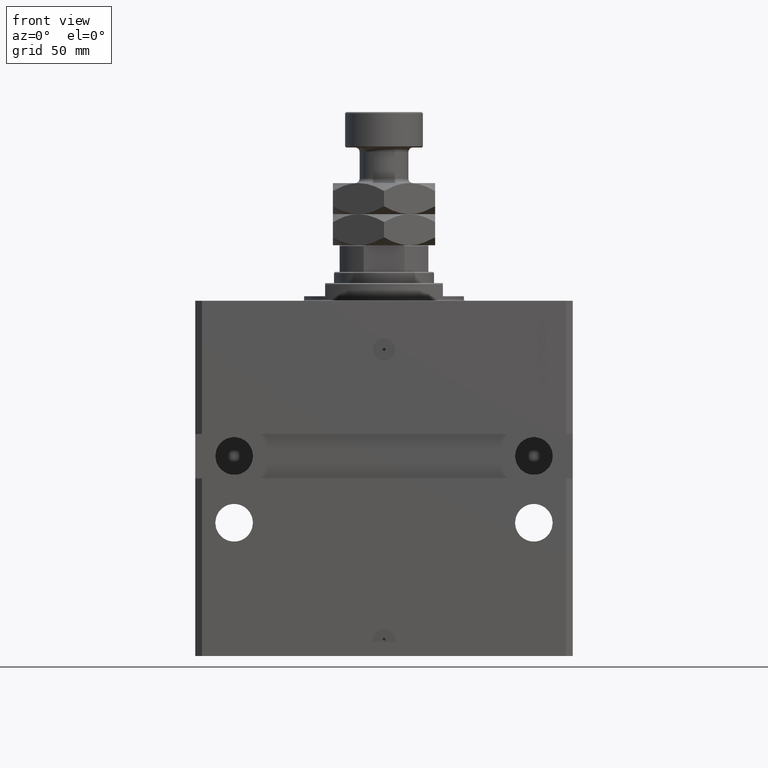
[diagram: clean part render]
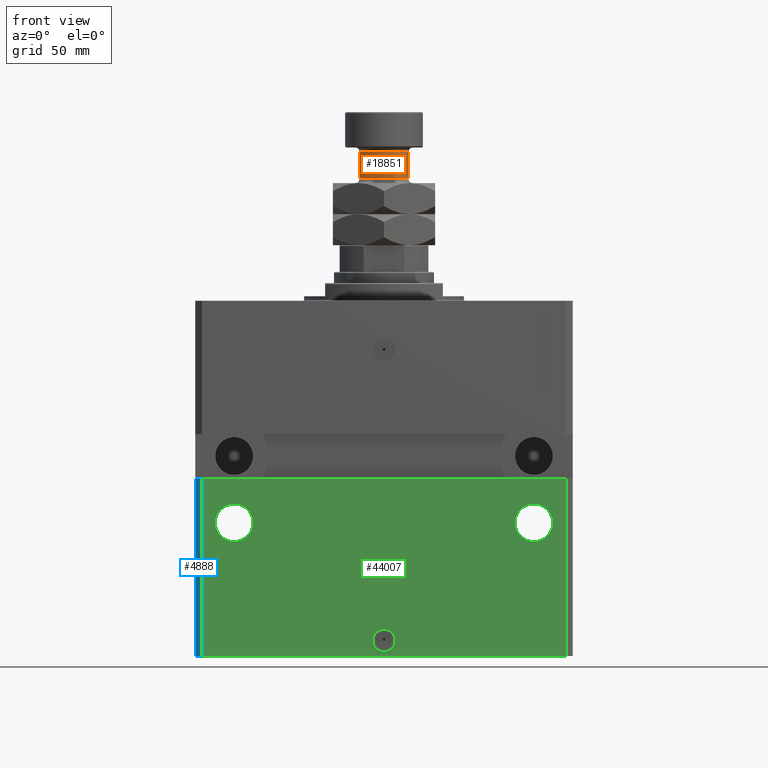
[diagram: same view with three faces highlighted in distinct colors, each labeled with its STEP entity id]
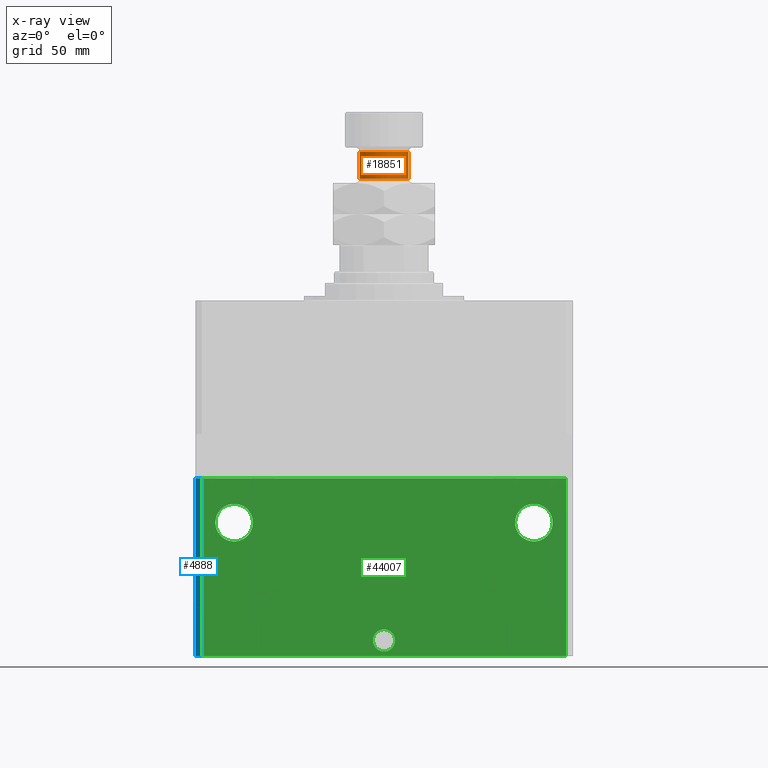
[diagram: x-ray of the same camera — body ghosted, the three highlighted faces saturated]
A machine part, front view with three faces highlighted in distinct colors.
The next image is the same camera in x-ray (body ghosted, the three faces saturated) — at least one of them is partly hidden behind the body in this view.
Their STEP definitions:

[orange] entity #18851 — the highlighted cylindrical surface (edge-blend (fillet) strip) has radius 11 mm, axis along (-0, -0, -1).
#1655 = EDGE_CURVE ( 'NONE', #43773, #32346, #5008, .T. ) ;
#2294 = DIRECTION ( 'NONE',  ( 1.000000000000000000, 0.000000000000000000, 0.000000000000000000 ) ) ;
#2419 = LINE ( 'NONE', #39066, #33247 ) ;
#3084 = EDGE_LOOP ( 'NONE', ( #13253, #47861, #15653, #31984 ) ) ;
#3100 = EDGE_CURVE ( 'NONE', #10146, #43773, #9563, .T. ) ;
#4962 = CARTESIAN_POINT ( 'NONE',  ( 11.00000000000000000, 1.347111479062088405E-15, 30.00000000000000000 ) ) ;
#5008 = CIRCLE ( 'NONE', #28271, 11.00000000000000000 ) ;
#5757 = AXIS2_PLACEMENT_3D ( 'NONE', #43534, #14136, #2294 ) ;
#6403 = DIRECTION ( 'NONE',  ( -0.000000000000000000, -0.000000000000000000, -1.000000000000000000 ) ) ;
#7570 = DIRECTION ( 'NONE',  ( 0.000000000000000000, 0.000000000000000000, 1.000000000000000000 ) ) ;
#8833 = CIRCLE ( 'NONE', #5757, 11.00000000000000000 ) ;
#9459 = CARTESIAN_POINT ( 'NONE',  ( -11.00000000000000000, 0.000000000000000000, 41.99999999999999289 ) ) ;
#9563 = LINE ( 'NONE', #47155, #9713 ) ;
#9713 = VECTOR ( 'NONE', #6403, 1000.000000000000000 ) ;
#10146 = VERTEX_POINT ( 'NONE', #9459 ) ;
#10902 = CARTESIAN_POINT ( 'NONE',  ( 11.00000000000000000, 1.347111479062088405E-15, 41.99999999999999289 ) ) ;
#13253 = ORIENTED_EDGE ( 'NONE', *, *, #47928, .F. ) ;
#13924 = DIRECTION ( 'NONE',  ( 1.000000000000000000, 0.000000000000000000, 0.000000000000000000 ) ) ;
#14136 = DIRECTION ( 'NONE',  ( -0.000000000000000000, -0.000000000000000000, -1.000000000000000000 ) ) ;
#15653 = ORIENTED_EDGE ( 'NONE', *, *, #3100, .T. ) ;
#17852 = DIRECTION ( 'NONE',  ( -0.000000000000000000, -0.000000000000000000, -1.000000000000000000 ) ) ;
#18851 = ADVANCED_FACE ( 'NONE', ( #24672 ), #24901, .T. ) ;
#20470 = CARTESIAN_POINT ( 'NONE',  ( -11.00000000000000000, 0.000000000000000000, 30.00000000000000000 ) ) ;
#21717 = DIRECTION ( 'NONE',  ( -1.000000000000000000, 0.000000000000000000, 0.000000000000000000 ) ) ;
#22374 = CARTESIAN_POINT ( 'NONE',  ( 0.000000000000000000, 0.000000000000000000, 30.00000000000000000 ) ) ;
#24101 = EDGE_CURVE ( 'NONE', #40753, #10146, #8833, .T. ) ;
#24672 = FACE_OUTER_BOUND ( 'NONE', #3084, .T. ) ;
#24901 = CYLINDRICAL_SURFACE ( 'NONE', #35707, 11.00000000000000000 ) ;
#25368 = CARTESIAN_POINT ( 'NONE',  ( 0.000000000000000000, 0.000000000000000000, 44.00000000000000000 ) ) ;
#28271 = AXIS2_PLACEMENT_3D ( 'NONE', #22374, #7570, #13924 ) ;
#31984 = ORIENTED_EDGE ( 'NONE', *, *, #1655, .T. ) ;
#32346 = VERTEX_POINT ( 'NONE', #4962 ) ;
#33247 = VECTOR ( 'NONE', #46335, 1000.000000000000000 ) ;
#35707 = AXIS2_PLACEMENT_3D ( 'NONE', #25368, #17852, #21717 ) ;
#39066 = CARTESIAN_POINT ( 'NONE',  ( 11.00000000000000000, 1.347111479062088405E-15, 44.00000000000000000 ) ) ;
#40753 = VERTEX_POINT ( 'NONE', #10902 ) ;
#43534 = CARTESIAN_POINT ( 'NONE',  ( 0.000000000000000000, 0.000000000000000000, 41.99999999999999289 ) ) ;
#43773 = VERTEX_POINT ( 'NONE', #20470 ) ;
#46335 = DIRECTION ( 'NONE',  ( -0.000000000000000000, -0.000000000000000000, -1.000000000000000000 ) ) ;
#47155 = CARTESIAN_POINT ( 'NONE',  ( -11.00000000000000000, 0.000000000000000000, 44.00000000000000000 ) ) ;
#47861 = ORIENTED_EDGE ( 'NONE', *, *, #24101, .T. ) ;
#47928 = EDGE_CURVE ( 'NONE', #40753, #32346, #2419, .T. ) ;

[blue] entity #4888 — the highlighted planar face has unit normal (-0.7071, -0.7071, 0).
#195 = LINE ( 'NONE', #36382, #39885 ) ;
#686 = EDGE_CURVE ( 'NONE', #39537, #28528, #4707, .T. ) ;
#1056 = CARTESIAN_POINT ( 'NONE',  ( -85.00000000000001421, -67.00000000000000000, -160.0000000000000000 ) ) ;
#2267 = CARTESIAN_POINT ( 'NONE',  ( -85.00000000000001421, -67.00000000000000000, -160.0000000000000000 ) ) ;
#3612 = DIRECTION ( 'NONE',  ( 0.7071067811865474617, -0.7071067811865474617, 0.000000000000000000 ) ) ;
#3842 = CARTESIAN_POINT ( 'NONE',  ( -82.00000000000001421, -70.00000000000000000, -160.0000000000000000 ) ) ;
#4707 = LINE ( 'NONE', #1056, #24359 ) ;
#4888 = ADVANCED_FACE ( 'NONE', ( #47967 ), #39781, .T. ) ;
#6760 = DIRECTION ( 'NONE',  ( -0.7071067811865475727, -0.7071067811865475727, 0.000000000000000000 ) ) ;
#7694 = ORIENTED_EDGE ( 'NONE', *, *, #686, .F. ) ;
#7972 = CARTESIAN_POINT ( 'NONE',  ( -85.00000000000001421, -67.00000000000000000, -160.0000000000000000 ) ) ;
#8395 = VERTEX_POINT ( 'NONE', #24788 ) ;
#12282 = EDGE_LOOP ( 'NONE', ( #12741, #7694, #35507, #29287 ) ) ;
#12741 = ORIENTED_EDGE ( 'NONE', *, *, #29365, .F. ) ;
#13144 = VECTOR ( 'NONE', #43702, 1000.000000000000000 ) ;
#13811 = CARTESIAN_POINT ( 'NONE',  ( -85.00000000000001421, -67.00000000000000000, -160.0000000000000000 ) ) ;
#16204 = VECTOR ( 'NONE', #30300, 1000.000000000000114 ) ;
#17732 = LINE ( 'NONE', #28659, #13144 ) ;
#18308 = VERTEX_POINT ( 'NONE', #3842 ) ;
#24359 = VECTOR ( 'NONE', #45470, 1000.000000000000000 ) ;
#24788 = CARTESIAN_POINT ( 'NONE',  ( -82.00000000000000000, -70.00000000000001421, -80.00000000000001421 ) ) ;
#27379 = LINE ( 'NONE', #7972, #16204 ) ;
#28528 = VERTEX_POINT ( 'NONE', #29802 ) ;
#28659 = CARTESIAN_POINT ( 'NONE',  ( -82.00000000000001421, -70.00000000000000000, -160.0000000000000000 ) ) ;
#29287 = ORIENTED_EDGE ( 'NONE', *, *, #45868, .T. ) ;
#29365 = EDGE_CURVE ( 'NONE', #28528, #8395, #195, .T. ) ;
#29802 = CARTESIAN_POINT ( 'NONE',  ( -85.00000000000001421, -67.00000000000000000, -80.00000000000001421 ) ) ;
#30300 = DIRECTION ( 'NONE',  ( 0.7071067811865474617, -0.7071067811865474617, 0.000000000000000000 ) ) ;
#35507 = ORIENTED_EDGE ( 'NONE', *, *, #45255, .T. ) ;
#36382 = CARTESIAN_POINT ( 'NONE',  ( -85.00000000000001421, -67.00000000000000000, -80.00000000000001421 ) ) ;
#37063 = DIRECTION ( 'NONE',  ( 0.7071067811865474617, -0.7071067811865474617, 0.000000000000000000 ) ) ;
#39537 = VERTEX_POINT ( 'NONE', #2267 ) ;
#39781 = PLANE ( 'NONE',  #46206 ) ;
#39885 = VECTOR ( 'NONE', #3612, 1000.000000000000114 ) ;
#43702 = DIRECTION ( 'NONE',  ( 0.000000000000000000, 0.000000000000000000, 1.000000000000000000 ) ) ;
#45255 = EDGE_CURVE ( 'NONE', #39537, #18308, #27379, .T. ) ;
#45470 = DIRECTION ( 'NONE',  ( 0.000000000000000000, 0.000000000000000000, 1.000000000000000000 ) ) ;
#45868 = EDGE_CURVE ( 'NONE', #18308, #8395, #17732, .T. ) ;
#46206 = AXIS2_PLACEMENT_3D ( 'NONE', #13811, #6760, #37063 ) ;
#47967 = FACE_OUTER_BOUND ( 'NONE', #12282, .T. ) ;

[green] entity #44007 — the highlighted planar face has unit normal (0, -1, 0).
#553 = CIRCLE ( 'NONE', #33887, 8.499999999999992895 ) ;
#943 = EDGE_CURVE ( 'NONE', #18308, #29926, #15015, .T. ) ;
#974 = CARTESIAN_POINT ( 'NONE',  ( 76.00000000000001421, -69.99999999999998579, -100.0000000000000000 ) ) ;
#1522 = FACE_BOUND ( 'NONE', #40225, .T. ) ;
#1617 = EDGE_CURVE ( 'NONE', #22416, #42242, #6585, .T. ) ;
#2537 = CARTESIAN_POINT ( 'NONE',  ( -76.00000000000001421, -70.00000000000001421, -100.0000000000000000 ) ) ;
#3518 = DIRECTION ( 'NONE',  ( -1.000000000000000000, 0.000000000000000000, 0.000000000000000000 ) ) ;
#3596 = DIRECTION ( 'NONE',  ( 1.000000000000000000, 0.000000000000000000, 0.000000000000000000 ) ) ;
#3606 = DIRECTION ( 'NONE',  ( 1.000000000000000000, 1.632680918566406300E-16, 0.000000000000000000 ) ) ;
#3816 = ORIENTED_EDGE ( 'NONE', *, *, #943, .T. ) ;
#3842 = CARTESIAN_POINT ( 'NONE',  ( -82.00000000000001421, -70.00000000000000000, -160.0000000000000000 ) ) ;
#4440 = FACE_BOUND ( 'NONE', #10944, .T. ) ;
#4687 = CARTESIAN_POINT ( 'NONE',  ( -82.00000000000001421, -70.00000000000000000, -160.0000000000000000 ) ) ;
#5057 = VERTEX_POINT ( 'NONE', #38259 ) ;
#5223 = CARTESIAN_POINT ( 'NONE',  ( 0.000000000000000000, -70.00000000000000000, -153.0000000000000000 ) ) ;
#5341 = EDGE_CURVE ( 'NONE', #17654, #18355, #14452, .T. ) ;
#6585 = CIRCLE ( 'NONE', #43013, 5.000000000000006217 ) ;
#6713 = AXIS2_PLACEMENT_3D ( 'NONE', #23457, #38258, #33425 ) ;
#8395 = VERTEX_POINT ( 'NONE', #24788 ) ;
#8418 = CIRCLE ( 'NONE', #39455, 8.499999999999992895 ) ;
#8565 = FACE_OUTER_BOUND ( 'NONE', #25190, .T. ) ;
#9643 = VECTOR ( 'NONE', #22781, 1000.000000000000000 ) ;
#10027 = DIRECTION ( 'NONE',  ( 1.176083712526788232E-16, -1.000000000000000000, 0.000000000000000000 ) ) ;
#10944 = EDGE_LOOP ( 'NONE', ( #33701, #12537 ) ) ;
#11067 = ORIENTED_EDGE ( 'NONE', *, *, #19032, .F. ) ;
#11638 = EDGE_CURVE ( 'NONE', #12639, #5057, #553, .T. ) ;
#12175 = EDGE_CURVE ( 'NONE', #42242, #22416, #25409, .T. ) ;
#12537 = ORIENTED_EDGE ( 'NONE', *, *, #44120, .F. ) ;
#12639 = VERTEX_POINT ( 'NONE', #974 ) ;
#12960 = CARTESIAN_POINT ( 'NONE',  ( 0.000000000000000000, -70.00000000000000000, -153.0000000000000000 ) ) ;
#12988 = DIRECTION ( 'NONE',  ( 1.176083712526788232E-16, -1.000000000000000000, 0.000000000000000000 ) ) ;
#13144 = VECTOR ( 'NONE', #43702, 1000.000000000000000 ) ;
#14430 = ORIENTED_EDGE ( 'NONE', *, *, #12175, .F. ) ;
#14452 = CIRCLE ( 'NONE', #6713, 8.499999999999992895 ) ;
#15015 = LINE ( 'NONE', #41231, #9643 ) ;
#16077 = DIRECTION ( 'NONE',  ( 0.000000000000000000, -1.000000000000000000, 0.000000000000000000 ) ) ;
#17076 = EDGE_LOOP ( 'NONE', ( #11067, #24778 ) ) ;
#17287 = VECTOR ( 'NONE', #46560, 1000.000000000000000 ) ;
#17654 = VERTEX_POINT ( 'NONE', #2537 ) ;
#17732 = LINE ( 'NONE', #28659, #13144 ) ;
#18308 = VERTEX_POINT ( 'NONE', #3842 ) ;
#18355 = VERTEX_POINT ( 'NONE', #47736 ) ;
#19032 = EDGE_CURVE ( 'NONE', #18355, #17654, #20186, .T. ) ;
#20186 = CIRCLE ( 'NONE', #41899, 8.499999999999992895 ) ;
#21418 = VERTEX_POINT ( 'NONE', #40310 ) ;
#22416 = VERTEX_POINT ( 'NONE', #33459 ) ;
#22484 = EDGE_CURVE ( 'NONE', #29926, #21418, #46308, .T. ) ;
#22781 = DIRECTION ( 'NONE',  ( 1.000000000000000000, 0.000000000000000000, 0.000000000000000000 ) ) ;
#23074 = AXIS2_PLACEMENT_3D ( 'NONE', #5223, #12988, #38463 ) ;
#23457 = CARTESIAN_POINT ( 'NONE',  ( -67.50000000000001421, -70.00000000000001421, -100.0000000000000000 ) ) ;
#24427 = EDGE_CURVE ( 'NONE', #8395, #21418, #40740, .T. ) ;
#24661 = ORIENTED_EDGE ( 'NONE', *, *, #22484, .T. ) ;
#24778 = ORIENTED_EDGE ( 'NONE', *, *, #5341, .F. ) ;
#24788 = CARTESIAN_POINT ( 'NONE',  ( -82.00000000000000000, -70.00000000000001421, -80.00000000000001421 ) ) ;
#24826 = DIRECTION ( 'NONE',  ( 1.000000000000000000, 0.000000000000000000, 0.000000000000000000 ) ) ;
#25190 = EDGE_LOOP ( 'NONE', ( #37670, #31993, #3816, #24661 ) ) ;
#25409 = CIRCLE ( 'NONE', #23074, 5.000000000000006217 ) ;
#26396 = CARTESIAN_POINT ( 'NONE',  ( -5.000000000000006217, -70.00000000000000000, -153.0000000000000000 ) ) ;
#27241 = DIRECTION ( 'NONE',  ( 0.000000000000000000, -0.000000000000000000, -1.000000000000000000 ) ) ;
#27765 = DIRECTION ( 'NONE',  ( 1.176083712526788232E-16, -1.000000000000000000, 0.000000000000000000 ) ) ;
#28457 = CARTESIAN_POINT ( 'NONE',  ( 67.50000000000001421, -69.99999999999998579, -100.0000000000000000 ) ) ;
#28659 = CARTESIAN_POINT ( 'NONE',  ( -82.00000000000001421, -70.00000000000000000, -160.0000000000000000 ) ) ;
#29926 = VERTEX_POINT ( 'NONE', #34074 ) ;
#31677 = AXIS2_PLACEMENT_3D ( 'NONE', #4687, #16077, #27241 ) ;
#31993 = ORIENTED_EDGE ( 'NONE', *, *, #45868, .F. ) ;
#33425 = DIRECTION ( 'NONE',  ( -1.000000000000000000, 0.000000000000000000, 0.000000000000000000 ) ) ;
#33459 = CARTESIAN_POINT ( 'NONE',  ( 5.000000000000006217, -70.00000000000000000, -153.0000000000000000 ) ) ;
#33701 = ORIENTED_EDGE ( 'NONE', *, *, #11638, .F. ) ;
#33887 = AXIS2_PLACEMENT_3D ( 'NONE', #46889, #35954, #3596 ) ;
#34074 = CARTESIAN_POINT ( 'NONE',  ( 82.00000000000001421, -70.00000000000000000, -160.0000000000000000 ) ) ;
#34528 = PLANE ( 'NONE',  #31677 ) ;
#35954 = DIRECTION ( 'NONE',  ( 1.176083712526788232E-16, -1.000000000000000000, 0.000000000000000000 ) ) ;
#36751 = DIRECTION ( 'NONE',  ( 1.176083712526788232E-16, -1.000000000000000000, 0.000000000000000000 ) ) ;
#36846 = CARTESIAN_POINT ( 'NONE',  ( -85.00000000000001421, -70.00000000000001421, -80.00000000000001421 ) ) ;
#37670 = ORIENTED_EDGE ( 'NONE', *, *, #24427, .F. ) ;
#38155 = FACE_BOUND ( 'NONE', #17076, .T. ) ;
#38258 = DIRECTION ( 'NONE',  ( 1.176083712526788232E-16, -1.000000000000000000, 0.000000000000000000 ) ) ;
#38259 = CARTESIAN_POINT ( 'NONE',  ( 59.00000000000002132, -69.99999999999998579, -100.0000000000000000 ) ) ;
#38463 = DIRECTION ( 'NONE',  ( 1.000000000000000000, 0.000000000000000000, 0.000000000000000000 ) ) ;
#39284 = CARTESIAN_POINT ( 'NONE',  ( 82.00000000000001421, -70.00000000000000000, -160.0000000000000000 ) ) ;
#39296 = ORIENTED_EDGE ( 'NONE', *, *, #1617, .F. ) ;
#39455 = AXIS2_PLACEMENT_3D ( 'NONE', #28457, #10027, #24826 ) ;
#39850 = VECTOR ( 'NONE', #3606, 1000.000000000000000 ) ;
#40225 = EDGE_LOOP ( 'NONE', ( #39296, #14430 ) ) ;
#40310 = CARTESIAN_POINT ( 'NONE',  ( 82.00000000000001421, -69.99999999999998579, -80.00000000000001421 ) ) ;
#40740 = LINE ( 'NONE', #36846, #39850 ) ;
#41127 = CARTESIAN_POINT ( 'NONE',  ( -67.50000000000001421, -70.00000000000001421, -100.0000000000000000 ) ) ;
#41231 = CARTESIAN_POINT ( 'NONE',  ( -82.00000000000001421, -70.00000000000000000, -160.0000000000000000 ) ) ;
#41899 = AXIS2_PLACEMENT_3D ( 'NONE', #41127, #36751, #3518 ) ;
#42242 = VERTEX_POINT ( 'NONE', #26396 ) ;
#42585 = DIRECTION ( 'NONE',  ( 1.000000000000000000, 0.000000000000000000, 0.000000000000000000 ) ) ;
#43013 = AXIS2_PLACEMENT_3D ( 'NONE', #12960, #27765, #42585 ) ;
#43702 = DIRECTION ( 'NONE',  ( 0.000000000000000000, 0.000000000000000000, 1.000000000000000000 ) ) ;
#44007 = ADVANCED_FACE ( 'NONE', ( #1522, #4440, #38155, #8565 ), #34528, .T. ) ;
#44120 = EDGE_CURVE ( 'NONE', #5057, #12639, #8418, .T. ) ;
#45868 = EDGE_CURVE ( 'NONE', #18308, #8395, #17732, .T. ) ;
#46308 = LINE ( 'NONE', #39284, #17287 ) ;
#46560 = DIRECTION ( 'NONE',  ( 0.000000000000000000, 0.000000000000000000, 1.000000000000000000 ) ) ;
#46889 = CARTESIAN_POINT ( 'NONE',  ( 67.50000000000001421, -69.99999999999998579, -100.0000000000000000 ) ) ;
#47736 = CARTESIAN_POINT ( 'NONE',  ( -59.00000000000002132, -70.00000000000001421, -100.0000000000000000 ) ) ;